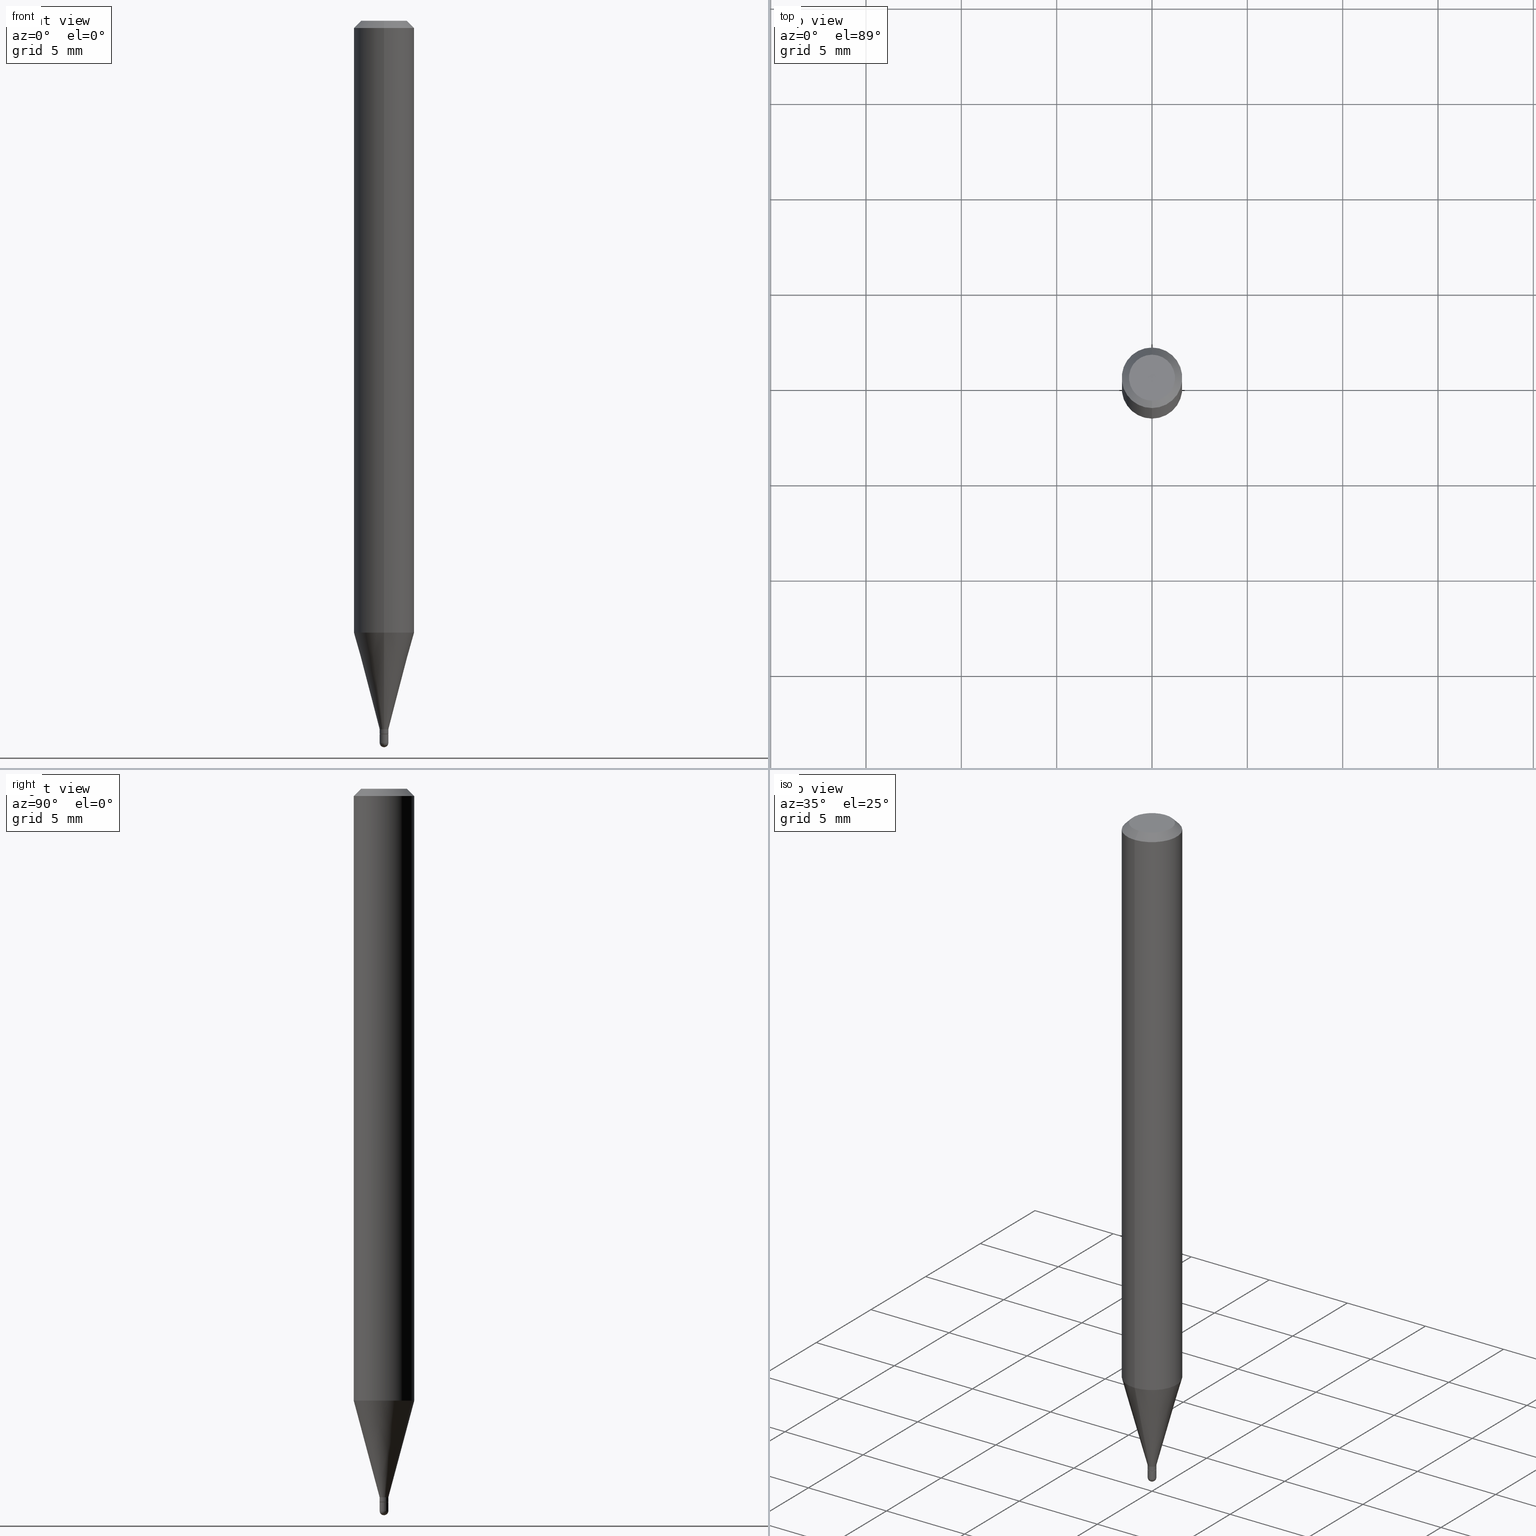
[diagram: canonical four-view strip — front | top / right | iso, engineering-drawing reading convention]
A machine part, canonical four-view strip (front | top / right | iso — engineering-drawing reading convention). The complete STEP part file that produces these views, byte-faithful:
ISO-10303-21;
HEADER;
FILE_DESCRIPTION (( 'STEP AP203' ),
    '1' );
FILE_NAME ('03042.STEP',
    '2024-03-08T18:02:53',
    ( '' ),
    ( '' ),
    'SwSTEP 2.0',
    'SolidWorks 2023',
    '' );
FILE_SCHEMA (( 'CONFIG_CONTROL_DESIGN' ));
ENDSEC;

DATA;
#1 = CARTESIAN_POINT ( 'NONE',  ( 3.646193990022038953E-29, -5.205798676215130324E-15, -1.491000000000000103 ) ) ;
#2 = EDGE_LOOP ( 'NONE', ( #447, #252, #242, #79 ) ) ;
#3 = ADVANCED_FACE ( 'NONE', ( #457 ), #400, .T. ) ;
#4 = CARTESIAN_POINT ( 'NONE',  ( 4.440892098500932831E-16, 0.06249999999999556605, -1.263335281795065823 ) ) ;
#5 = VERTEX_POINT ( 'NONE', #224 ) ;
#6 = DATE_TIME_ROLE ( 'classification_date' ) ;
#7 = AXIS2_PLACEMENT_3D ( 'NONE', #474, #87, #331 ) ;
#8 = EDGE_CURVE ( 'NONE', #368, #275, #66, .T. ) ;
#9 = EDGE_CURVE ( 'NONE', #479, #88, #298, .T. ) ;
#10 = DIRECTION ( 'NONE',  ( 2.438088387897960049E-29, -3.491481338843145188E-15, -1.000000000000000000 ) ) ;
#11 = EDGE_LOOP ( 'NONE', ( #49, #481, #485, #133 ) ) ;
#12 = DIRECTION ( 'NONE',  ( 5.024295867788190974E-15, 0.7071067811865681119, 0.7071067811865270336 ) ) ;
#13 = ORIENTED_EDGE ( 'NONE', *, *, #350, .T. ) ;
#14 = CARTESIAN_POINT ( 'NONE',  ( 6.394884621840845723E-17, 0.008999999999999922992, -3.142336876373948999E-17 ) ) ;
#15 = EDGE_LOOP ( 'NONE', ( #18, #202 ) ) ;
#16 = CIRCLE ( 'NONE', #128, 0.008999999999999922992 ) ;
#17 = CIRCLE ( 'NONE', #58, 0.008499999999999998876 ) ;
#18 = ORIENTED_EDGE ( 'NONE', *, *, #208, .F. ) ;
#19 = DIRECTION ( 'NONE',  ( -2.445465957590144447E-29, 3.491485418193306478E-15, 1.000000000000000000 ) ) ;
#20 = APPLICATION_CONTEXT ( 'configuration controlled 3d designs of mechanical parts and assemblies' ) ;
#21 = EDGE_CURVE ( 'NONE', #386, #207, #409, .T. ) ;
#22 = DIRECTION ( 'NONE',  ( -2.445465957590144447E-29, 3.491485418193306478E-15, 1.000000000000000000 ) ) ;
#23 = DIRECTION ( 'NONE',  ( -2.445468806185136597E-29, 3.491481338843145583E-15, 1.000000000000000000 ) ) ;
#24 = AXIS2_PLACEMENT_3D ( 'NONE', #303, #22, #141 ) ;
#25 = DIRECTION ( 'NONE',  ( 2.445465957590144447E-29, -3.491485418193306478E-15, -1.000000000000000000 ) ) ;
#26 = COORDINATED_UNIVERSAL_TIME_OFFSET ( 5, 0, .BEHIND. ) ;
#27 = ORIENTED_EDGE ( 'NONE', *, *, #316, .F. ) ;
#28 = PERSON_AND_ORGANIZATION_ROLE ( 'design_owner' ) ;
#29 = CARTESIAN_POINT ( 'NONE',  ( 6.394884621844426412E-17, 0.008999999999994753516, -1.472500000000000142 ) ) ;
#30 = ADVANCED_FACE ( 'NONE', ( #184 ), #172, .F. ) ;
#31 = DATE_AND_TIME ( #181, #347 ) ;
#32 = CONICAL_SURFACE ( 'NONE', #89, 0.008999999999999922992, 0.2617993877991502960 ) ;
#33 = DIRECTION ( 'NONE',  ( 1.000000000000000000, -6.982962677686225690E-15, 0.000000000000000000 ) ) ;
#34 = DIRECTION ( 'NONE',  ( -2.445468806185136597E-29, 3.491481338843145583E-15, 1.000000000000000000 ) ) ;
#35 = SPHERICAL_SURFACE ( 'NONE', #41, 0.008999999999999910849 ) ;
#36 = ORIENTED_EDGE ( 'NONE', *, *, #71, .T. ) ;
#37 = DIRECTION ( 'NONE',  ( 1.000000000000000000, -6.982962677686225690E-15, 0.000000000000000000 ) ) ;
#38 = EDGE_CURVE ( 'NONE', #5, #386, #337, .T. ) ;
#39 = EDGE_CURVE ( 'NONE', #96, #249, #228, .T. ) ;
#40 = CARTESIAN_POINT ( 'NONE',  ( 6.394884621844422714E-17, 0.008999999999994814232, -1.462999999999999856 ) ) ;
#41 = AXIS2_PLACEMENT_3D ( 'NONE', #428, #351, #226 ) ;
#42 = EDGE_LOOP ( 'NONE', ( #487, #327, #195, #288 ) ) ;
#43 = COORDINATED_UNIVERSAL_TIME_OFFSET ( 5, 0, .BEHIND. ) ;
#44 = CARTESIAN_POINT ( 'NONE',  ( 3.577716695954381229E-29, -5.108043166816806907E-15, -1.462999999999999856 ) ) ;
#45 = ORIENTED_EDGE ( 'NONE', *, *, #161, .T. ) ;
#46 = DIRECTION ( 'NONE',  ( -4.937700262164674260E-15, -0.7071067811865632269, 0.7071067811865319186 ) ) ;
#47 = ORIENTED_EDGE ( 'NONE', *, *, #441, .T. ) ;
#48 = CARTESIAN_POINT ( 'NONE',  ( 6.039613253964452424E-17, 0.008499999999994855421, -1.473000000000000087 ) ) ;
#49 = ORIENTED_EDGE ( 'NONE', *, *, #441, .F. ) ;
#50 = AXIS2_PLACEMENT_3D ( 'NONE', #495, #372, #259 ) ;
#51 = VECTOR ( 'NONE', #12, 39.37007874015748143 ) ;
#52 = LOCAL_TIME ( 13, 2, 53.00000000000000000, #43 ) ;
#53 = LINE ( 'NONE', #48, #51 ) ;
#54 = ORIENTED_EDGE ( 'NONE', *, *, #359, .T. ) ;
#55 = FACE_OUTER_BOUND ( 'NONE', #82, .T. ) ;
#56 = EDGE_LOOP ( 'NONE', ( #13, #279 ) ) ;
#57 = ORIENTED_EDGE ( 'NONE', *, *, #341, .T. ) ;
#58 = AXIS2_PLACEMENT_3D ( 'NONE', #382, #472, #434 ) ;
#59 = DIRECTION ( 'NONE',  ( -6.982962677686265922E-15, -1.000000000000000000, 0.000000000000000000 ) ) ;
#60 = CARTESIAN_POINT ( 'NONE',  ( 0.000000000000000000, 0.000000000000000000, 0.000000000000000000 ) ) ;
#61 = ADVANCED_FACE ( 'NONE', ( #336 ), #214, .T. ) ;
#62 = CYLINDRICAL_SURFACE ( 'NONE', #468, 0.008999999999999922992 ) ;
#63 = CYLINDRICAL_SURFACE ( 'NONE', #50, 0.008999999999999922992 ) ;
#64 = LINE ( 'NONE', #492, #373 ) ;
#65 = AXIS2_PLACEMENT_3D ( 'NONE', #439, #10, #163 ) ;
#66 = LINE ( 'NONE', #67, #414 ) ;
#67 = CARTESIAN_POINT ( 'NONE',  ( -6.284666409917585411E-17, -0.008999999999999922992, 3.142336876373948999E-17 ) ) ;
#68 = ADVANCED_FACE ( 'NONE', ( #328 ), #63, .T. ) ;
#69 = APPROVAL_DATE_TIME ( #422, #486 ) ;
#70 = FACE_OUTER_BOUND ( 'NONE', #11, .T. ) ;
#71 = EDGE_CURVE ( 'NONE', #386, #5, #276, .T. ) ;
#72 = PERSON_AND_ORGANIZATION ( #215, #315 ) ;
#73 = CIRCLE ( 'NONE', #229, 0.008999999999999922992 ) ;
#74 = DIRECTION ( 'NONE',  ( -2.445465957590144447E-29, 3.491485418193306478E-15, 1.000000000000000000 ) ) ;
#75 = DIRECTION ( 'NONE',  ( -2.445465957590144447E-29, 3.491485418193306478E-15, 1.000000000000000000 ) ) ;
#76 = EDGE_CURVE ( 'NONE', #164, #307, #267, .T. ) ;
#77 = DIRECTION ( 'NONE',  ( -2.445465957590144447E-29, 3.491485418193306478E-15, 1.000000000000000000 ) ) ;
#78 = LINE ( 'NONE', #114, #260 ) ;
#79 = ORIENTED_EDGE ( 'NONE', *, *, #8, .F. ) ;
#80 = CARTESIAN_POINT ( 'NONE',  ( 3.577716695954381229E-29, -5.108043166816806907E-15, -1.462999999999999856 ) ) ;
#81 = ADVANCED_FACE ( 'NONE', ( #329 ), #444, .T. ) ;
#82 = EDGE_LOOP ( 'NONE', ( #397, #124, #57, #246 ) ) ;
#83 = AXIS2_PLACEMENT_3D ( 'NONE', #189, #146, #304 ) ;
#84 = CARTESIAN_POINT ( 'NONE',  ( -6.284666409914007187E-17, -0.009000000000005030018, -1.462999999999999856 ) ) ;
#85 = CARTESIAN_POINT ( 'NONE',  ( -5.935518276029722497E-17, -0.008500000000005140596, -1.473000000000000087 ) ) ;
#86 = EDGE_LOOP ( 'NONE', ( #383, #255, #234, #168 ) ) ;
#87 = DIRECTION ( 'NONE',  ( -2.445468806185136597E-29, 3.491481338843145583E-15, 1.000000000000000000 ) ) ;
#88 = VERTEX_POINT ( 'NONE', #101 ) ;
#89 = AXIS2_PLACEMENT_3D ( 'NONE', #305, #77, #187 ) ;
#90 = APPROVAL ( #465, 'UNSPECIFIED' ) ;
#91 = CC_DESIGN_APPROVAL ( #486, ( #339 ) ) ;
#92 = CARTESIAN_POINT ( 'NONE',  ( 3.840629472727447874E-16, 0.04749999999999999362, 7.364327909283748346E-17 ) ) ;
#93 = ORIENTED_EDGE ( 'NONE', *, *, #71, .F. ) ;
#94 = FACE_OUTER_BOUND ( 'NONE', #505, .T. ) ;
#95 = EDGE_LOOP ( 'NONE', ( #358, #282 ) ) ;
#96 = VERTEX_POINT ( 'NONE', #216 ) ;
#97 = APPROVAL_PERSON_ORGANIZATION ( #183, #90, #297 ) ;
#98 = APPROVAL_PERSON_ORGANIZATION ( #399, #314, #313 ) ;
#99 = FACE_OUTER_BOUND ( 'NONE', #205, .T. ) ;
#100 = PRODUCT_DEFINITION_SHAPE ( 'NONE', 'NONE',  #369 ) ;
#101 = CARTESIAN_POINT ( 'NONE',  ( -4.364351673553912750E-16, -0.06250000000000005551, -0.01499999999999954321 ) ) ;
#102 =( NAMED_UNIT ( * ) PLANE_ANGLE_UNIT ( ) SI_UNIT ( $, .RADIAN. ) );
#103 = DIRECTION ( 'NONE',  ( -6.982962677686265922E-15, -1.000000000000000000, 3.491485418193306478E-15 ) ) ;
#104 =( LENGTH_UNIT ( ) NAMED_UNIT ( * ) SI_UNIT ( $, .METRE. ) );
#105 = CLOSED_SHELL ( 'NONE', ( #180, #243, #289, #134, #132 ) ) ;
#106 = CIRCLE ( 'NONE', #489, 0.06250000000000000000 ) ;
#107 = DIRECTION ( 'NONE',  ( -6.982962677686265922E-15, -1.000000000000000000, 0.000000000000000000 ) ) ;
#108 = PERSON_AND_ORGANIZATION_ROLE ( 'creator' ) ;
#109 = FACE_OUTER_BOUND ( 'NONE', #42, .T. ) ;
#110 = DIRECTION ( 'NONE',  ( -2.445465957590144447E-29, 3.491485418193306478E-15, 1.000000000000000000 ) ) ;
#111 = CLOSED_SHELL ( 'NONE', ( #456, #384, #308, #131, #3, #186, #61, #81, #256, #30, #455, #68 ) ) ;
#112 = CONICAL_SURFACE ( 'NONE', #287, 0.06250000000000000000, 0.7853981633974483900 ) ;
#113 = CARTESIAN_POINT ( 'NONE',  ( -6.284666409914007187E-17, -0.009000000000005030018, -1.462999999999999856 ) ) ;
#114 = CARTESIAN_POINT ( 'NONE',  ( -0.008999999999999999320, 6.394884621840901190E-17, -4.427041581229414594E-31 ) ) ;
#115 = CARTESIAN_POINT ( 'NONE',  ( 0.000000000000000000, 0.000000000000000000, 0.000000000000000000 ) ) ;
#116 = CC_DESIGN_PERSON_AND_ORGANIZATION_ASSIGNMENT ( #340, #225, ( #339 ) ) ;
#117 = EDGE_CURVE ( 'NONE', #479, #451, #253, .T. ) ;
#118 = CARTESIAN_POINT ( 'NONE',  ( -5.856617967785148099E-45, 8.361717803097652649E-31, 2.394888364570195200E-16 ) ) ;
#119 = CIRCLE ( 'NONE', #407, 0.008999999999999999320 ) ;
#120 = CC_DESIGN_APPROVAL ( #314, ( #269 ) ) ;
#121 = DIRECTION ( 'NONE',  ( -2.445465957590144447E-29, 3.491485418193306478E-15, 1.000000000000000000 ) ) ;
#122 = ORIENTED_EDGE ( 'NONE', *, *, #508, .F. ) ;
#123 = DIRECTION ( 'NONE',  ( -2.445465957590144447E-29, 3.491485418193306478E-15, 1.000000000000000000 ) ) ;
#124 = ORIENTED_EDGE ( 'NONE', *, *, #76, .T. ) ;
#125 = DIRECTION ( 'NONE',  ( -2.445468806185136597E-29, 3.491481338843145583E-15, 1.000000000000000000 ) ) ;
#126 = VERTEX_POINT ( 'NONE', #29 ) ;
#127 = AXIS2_PLACEMENT_3D ( 'NONE', #334, #135, #293 ) ;
#128 = AXIS2_PLACEMENT_3D ( 'NONE', #44, #74, #239 ) ;
#129 = CARTESIAN_POINT ( 'NONE',  ( 3.668198936385158183E-31, -5.237228127289876172E-17, -0.01499999999999976179 ) ) ;
#130 = ORIENTED_EDGE ( 'NONE', *, *, #475, .T. ) ;
#131 = ADVANCED_FACE ( 'NONE', ( #109 ), #493, .T. ) ;
#132 = ADVANCED_FACE ( 'NONE', ( #99 ), #411, .T. ) ;
#133 = ORIENTED_EDGE ( 'NONE', *, *, #166, .F. ) ;
#134 = ADVANCED_FACE ( 'NONE', ( #272 ), #35, .T. ) ;
#135 = DIRECTION ( 'NONE',  ( -2.445465957590144447E-29, 3.491485418193306478E-15, 1.000000000000000000 ) ) ;
#136 = AXIS2_PLACEMENT_3D ( 'NONE', #1, #470, #33 ) ;
#137 = DIRECTION ( 'NONE',  ( 7.105427357601001859E-15, 1.000000000000000000, 0.000000000000000000 ) ) ;
#138 = DIRECTION ( 'NONE',  ( 0.000000000000000000, 0.000000000000000000, 1.000000000000000000 ) ) ;
#139 = ORIENTED_EDGE ( 'NONE', *, *, #154, .T. ) ;
#140 = PERSON_AND_ORGANIZATION ( #215, #315 ) ;
#141 = DIRECTION ( 'NONE',  ( -6.982962677686265922E-15, -1.000000000000000000, 4.370956789862821150E-15 ) ) ;
#142 = AXIS2_PLACEMENT_3D ( 'NONE', #462, #182, #137 ) ;
#143 = CIRCLE ( 'NONE', #346, 0.008999999999999910849 ) ;
#144 = CARTESIAN_POINT ( 'NONE',  ( 3.577716695954381229E-29, -5.108043166816806907E-15, -1.462999999999999856 ) ) ;
#145 = SECURITY_CLASSIFICATION_LEVEL ( 'unclassified' ) ;
#146 = DIRECTION ( 'NONE',  ( 1.000000000000000000, -6.982962677686265922E-15, 4.883557194083112340E-29 ) ) ;
#147 = DIRECTION ( 'NONE',  ( -6.982962677686265922E-15, -1.000000000000000000, 0.000000000000000000 ) ) ;
#148 = VECTOR ( 'NONE', #296, 39.37007874015748143 ) ;
#149 = AXIS2_PLACEMENT_3D ( 'NONE', #221, #138, #223 ) ;
#150 = CARTESIAN_POINT ( 'NONE',  ( 3.600948622551487677E-29, -5.141212278289644007E-15, -1.472500000000000142 ) ) ;
#151 = ORIENTED_EDGE ( 'NONE', *, *, #448, .T. ) ;
#152 = DIRECTION ( 'NONE',  ( 1.000000000000000000, -6.982962677686266711E-15, 4.876176775795935232E-29 ) ) ;
#153 = EDGE_LOOP ( 'NONE', ( #151, #156, #450, #476, #139 ) ) ;
#154 = EDGE_CURVE ( 'NONE', #284, #249, #169, .T. ) ;
#155 = CARTESIAN_POINT ( 'NONE',  ( -0.008999999999999999320, -5.110426497947132608E-15, -1.473000000000000087 ) ) ;
#156 = ORIENTED_EDGE ( 'NONE', *, *, #170, .T. ) ;
#157 = CARTESIAN_POINT ( 'NONE',  ( 2.540190280342689277E-16, 0.008999999999994814232, -1.462999999999999856 ) ) ;
#158 = CIRCLE ( 'NONE', #445, 0.008999999999999922992 ) ;
#159 = EDGE_LOOP ( 'NONE', ( #349, #326, #291, #322 ) ) ;
#160 = FACE_OUTER_BOUND ( 'NONE', #56, .T. ) ;
#161 = EDGE_CURVE ( 'NONE', #406, #275, #16, .T. ) ;
#162 = ORIENTED_EDGE ( 'NONE', *, *, #39, .F. ) ;
#163 = DIRECTION ( 'NONE',  ( -1.000000000000000000, 6.982962677686265922E-15, -4.876176775795935793E-29 ) ) ;
#164 = VERTEX_POINT ( 'NONE', #310 ) ;
#165 = APPLICATION_CONTEXT ( 'configuration controlled 3d designs of mechanical parts and assemblies' ) ;
#166 = EDGE_CURVE ( 'NONE', #193, #284, #380, .T. ) ;
#167 = PLANE ( 'NONE',  #65 ) ;
#168 = ORIENTED_EDGE ( 'NONE', *, *, #199, .F. ) ;
#169 = CIRCLE ( 'NONE', #458, 0.008999999999999999320 ) ;
#170 = EDGE_CURVE ( 'NONE', #273, #171, #78, .T. ) ;
#171 = VERTEX_POINT ( 'NONE', #155 ) ;
#172 = PLANE ( 'NONE',  #365 ) ;
#173 = DIRECTION ( 'NONE',  ( -6.982962677686265922E-15, -1.000000000000000000, 4.370956789862821150E-15 ) ) ;
#174 = AXIS2_PLACEMENT_3D ( 'NONE', #300, #488, #173 ) ;
#175 = MANIFOLD_SOLID_BREP ( 'Body-Move/Copy2[1]', #105 ) ;
#176 = VECTOR ( 'NONE', #321, 39.37007874015748143 ) ;
#177 = FACE_OUTER_BOUND ( 'NONE', #86, .T. ) ;
#178 = LOCAL_TIME ( 13, 2, 53.00000000000000000, #26 ) ;
#179 = CARTESIAN_POINT ( 'NONE',  ( 3.602171355530283344E-29, -5.142958020998740322E-15, -1.473000000000000087 ) ) ;
#180 = ADVANCED_FACE ( 'NONE', ( #423 ), #430, .T. ) ;
#181 = CALENDAR_DATE ( 2024, 8, 3 ) ;
#182 = DIRECTION ( 'NONE',  ( 1.000000000000000000, -7.105427357601001070E-15, 4.926315508542082329E-29 ) ) ;
#183 = PERSON_AND_ORGANIZATION ( #215, #315 ) ;
#184 = FACE_OUTER_BOUND ( 'NONE', #15, .T. ) ;
#185 = CALENDAR_DATE ( 2024, 8, 3 ) ;
#186 = ADVANCED_FACE ( 'NONE', ( #266 ), #32, .T. ) ;
#187 = DIRECTION ( 'NONE',  ( -6.982962677686265922E-15, -1.000000000000000000, 0.000000000000000000 ) ) ;
#188 = DIRECTION ( 'NONE',  ( -6.982962677686265922E-15, -1.000000000000000000, 0.000000000000000000 ) ) ;
#189 = CARTESIAN_POINT ( 'NONE',  ( 3.645424340361776999E-29, -5.206900858334362902E-15, -1.491000000000000103 ) ) ;
#190 = CIRCLE ( 'NONE', #211, 0.04749999999999999362 ) ;
#191 = CARTESIAN_POINT ( 'NONE',  ( 3.600948622551487677E-29, -5.141212278289644007E-15, -1.472500000000000142 ) ) ;
#192 = CC_DESIGN_DATE_AND_TIME_ASSIGNMENT ( #427, #333, ( #369 ) ) ;
#193 = VERTEX_POINT ( 'NONE', #236 ) ;
#194 = DIRECTION ( 'NONE',  ( -2.445468806185136597E-29, 3.491481338843145583E-15, 1.000000000000000000 ) ) ;
#195 = ORIENTED_EDGE ( 'NONE', *, *, #421, .F. ) ;
#196 = CARTESIAN_POINT ( 'NONE',  ( 3.602171355530283344E-29, -5.142958020998740322E-15, -1.473000000000000087 ) ) ;
#197 = ORIENTED_EDGE ( 'NONE', *, *, #294, .F. ) ;
#198 = SHAPE_DEFINITION_REPRESENTATION ( #100, #398 ) ;
#199 = EDGE_CURVE ( 'NONE', #451, #207, #391, .T. ) ;
#200 = CARTESIAN_POINT ( 'NONE',  ( 3.645424340361776999E-29, -5.206900858334362902E-15, -1.491000000000000103 ) ) ;
#201 = AXIS2_PLACEMENT_3D ( 'NONE', #280, #23, #403 ) ;
#202 = ORIENTED_EDGE ( 'NONE', *, *, #76, .F. ) ;
#203 = CC_DESIGN_APPROVAL ( #90, ( #369 ) ) ;
#204 = CARTESIAN_POINT ( 'NONE',  ( 3.646193990022038953E-29, -5.205798676215130324E-15, -1.491000000000000103 ) ) ;
#205 = EDGE_LOOP ( 'NONE', ( #388, #392, #254, #210, #122 ) ) ;
#206 = CARTESIAN_POINT ( 'NONE',  ( 3.602171355530283344E-29, -5.142958020998740322E-15, -1.473000000000000087 ) ) ;
#207 = VERTEX_POINT ( 'NONE', #312 ) ;
#208 = EDGE_CURVE ( 'NONE', #307, #164, #17, .T. ) ;
#209 = VECTOR ( 'NONE', #222, 39.37007874015748143 ) ;
#210 = ORIENTED_EDGE ( 'NONE', *, *, #361, .T. ) ;
#211 = AXIS2_PLACEMENT_3D ( 'NONE', #118, #121, #241 ) ;
#212 = AXIS2_PLACEMENT_3D ( 'NONE', #206, #290, #449 ) ;
#213 = DESIGN_CONTEXT ( 'detailed design', #20, 'design' ) ;
#214 = CYLINDRICAL_SURFACE ( 'NONE', #127, 0.06250000000000000000 ) ;
#215 = PERSON ( 'UNSPECIFIED', 'UNSPECIFIED', 'UNSPECIFIED', ('UNSPECIFIED'), ('UNSPECIFIED'), ('UNSPECIFIED') ) ;
#216 = CARTESIAN_POINT ( 'NONE',  ( 3.667048734787312244E-29, -5.238875281443567044E-15, -1.499999999999999778 ) ) ;
#217 = CARTESIAN_POINT ( 'NONE',  ( 0.000000000000000000, 0.000000000000000000, 0.000000000000000000 ) ) ;
#218 = CARTESIAN_POINT ( 'NONE',  ( -4.287811248607203282E-16, -0.06250000000000005551, -0.01499999999999954321 ) ) ;
#219 = AXIS2_PLACEMENT_3D ( 'NONE', #257, #377, #332 ) ;
#220 = AXIS2_PLACEMENT_3D ( 'NONE', #80, #504, #147 ) ;
#221 = CARTESIAN_POINT ( 'NONE',  ( 0.000000000000000000, 0.000000000000000000, 0.000000000000000000 ) ) ;
#222 = DIRECTION ( 'NONE',  ( -2.445465957590144447E-29, 3.491485418193306478E-15, 1.000000000000000000 ) ) ;
#223 = DIRECTION ( 'NONE',  ( 1.000000000000000000, 0.000000000000000000, 0.000000000000000000 ) ) ;
#224 = CARTESIAN_POINT ( 'NONE',  ( -4.364351673553608052E-16, -0.06250000000000441314, -1.263335281795065157 ) ) ;
#225 = PERSON_AND_ORGANIZATION_ROLE ( 'creator' ) ;
#226 = DIRECTION ( 'NONE',  ( -6.982962677686265922E-15, -1.000000000000000000, 0.000000000000000000 ) ) ;
#227 = PRODUCT_RELATED_PRODUCT_CATEGORY ( 'detail', '', ( #410 ) ) ;
#228 = CIRCLE ( 'NONE', #142, 0.008999999999999910849 ) ;
#229 = AXIS2_PLACEMENT_3D ( 'NONE', #150, #306, #360 ) ;
#230 = DIMENSIONAL_EXPONENTS ( 1.000000000000000000, 0.000000000000000000, 0.000000000000000000, 0.000000000000000000, 0.000000000000000000, 0.000000000000000000, 0.000000000000000000 ) ;
#231 = CARTESIAN_POINT ( 'NONE',  ( 4.364351673553919652E-16, 0.06249999999999995143, -0.01499999999999997863 ) ) ;
#232 = EDGE_CURVE ( 'NONE', #406, #386, #501, .T. ) ;
#233 = DIRECTION ( 'NONE',  ( -2.445468806185136877E-29, 3.491481338843145188E-15, 1.000000000000000000 ) ) ;
#234 = ORIENTED_EDGE ( 'NONE', *, *, #421, .T. ) ;
#235 = CC_DESIGN_PERSON_AND_ORGANIZATION_ASSIGNMENT ( #140, #108, ( #369 ) ) ;
#236 = CARTESIAN_POINT ( 'NONE',  ( -6.284666409913961581E-17, -0.009000000000005161857, -1.491000000000000103 ) ) ;
#237 = CALENDAR_DATE ( 2024, 8, 3 ) ;
#238 = VECTOR ( 'NONE', #274, 39.37007874015748143 ) ;
#239 = DIRECTION ( 'NONE',  ( -6.982962677686265922E-15, -1.000000000000000000, 0.000000000000000000 ) ) ;
#240 = CARTESIAN_POINT ( 'NONE',  ( 0.008999999999999999320, -6.284666409917639645E-17, 4.388559098216341408E-31 ) ) ;
#241 = DIRECTION ( 'NONE',  ( -6.982962677686266711E-15, -1.000000000000000000, 3.491485418193306872E-15 ) ) ;
#242 = ORIENTED_EDGE ( 'NONE', *, *, #264, .F. ) ;
#243 = ADVANCED_FACE ( 'NONE', ( #70 ), #387, .T. ) ;
#244 = LINE ( 'NONE', #14, #509 ) ;
#245 = AXIS2_PLACEMENT_3D ( 'NONE', #496, #34, #37 ) ;
#246 = ORIENTED_EDGE ( 'NONE', *, *, #251, .F. ) ;
#247 = LOCAL_TIME ( 13, 2, 53.00000000000000000, #261 ) ;
#248 = LINE ( 'NONE', #85, #426 ) ;
#249 = VERTEX_POINT ( 'NONE', #464 ) ;
#250 = CARTESIAN_POINT ( 'NONE',  ( 0.008999999999999999320, -5.205798676215129535E-15, -1.473000000000000087 ) ) ;
#251 = EDGE_CURVE ( 'NONE', #126, #368, #158, .T. ) ;
#252 = ORIENTED_EDGE ( 'NONE', *, *, #294, .T. ) ;
#253 = CIRCLE ( 'NONE', #219, 0.04749999999999999362 ) ;
#254 = ORIENTED_EDGE ( 'NONE', *, *, #166, .T. ) ;
#255 = ORIENTED_EDGE ( 'NONE', *, *, #9, .T. ) ;
#256 = ADVANCED_FACE ( 'NONE', ( #344 ), #345, .F. ) ;
#257 = CARTESIAN_POINT ( 'NONE',  ( -5.856617967785148099E-45, 8.361717803097652649E-31, 2.394888364570195200E-16 ) ) ;
#258 =( NAMED_UNIT ( * ) SI_UNIT ( $, .STERADIAN. ) SOLID_ANGLE_UNIT ( ) );
#259 = DIRECTION ( 'NONE',  ( -6.982962677686265922E-15, -1.000000000000000000, 3.491485418193306478E-15 ) ) ;
#260 = VECTOR ( 'NONE', #233, 39.37007874015748143 ) ;
#261 = COORDINATED_UNIVERSAL_TIME_OFFSET ( 5, 0, .BEHIND. ) ;
#262 = CARTESIAN_POINT ( 'NONE',  ( 3.668198936385158183E-31, -5.237228127289876172E-17, -0.01499999999999976179 ) ) ;
#263 = APPROVAL_STATUS ( 'not_yet_approved' ) ;
#264 = EDGE_CURVE ( 'NONE', #275, #406, #452, .T. ) ;
#265 = DIRECTION ( 'NONE',  ( 1.000000000000000000, -6.982962677686225690E-15, 0.000000000000000000 ) ) ;
#266 = FACE_OUTER_BOUND ( 'NONE', #507, .T. ) ;
#267 = CIRCLE ( 'NONE', #435, 0.008499999999999998876 ) ;
#268 = CONICAL_SURFACE ( 'NONE', #390, 0.008499999999999998876, 0.7853981633974739252 ) ;
#269 = SECURITY_CLASSIFICATION ( '', '', #145 ) ;
#270 = CARTESIAN_POINT ( 'NONE',  ( 0.008999999999999999320, -5.237222008264718177E-15, -1.491000000000000103 ) ) ;
#271 = CC_DESIGN_PERSON_AND_ORGANIZATION_ASSIGNMENT ( #374, #28, ( #410 ) ) ;
#272 = FACE_OUTER_BOUND ( 'NONE', #352, .T. ) ;
#273 = VERTEX_POINT ( 'NONE', #466 ) ;
#274 = DIRECTION ( 'NONE',  ( 4.937700262164548042E-15, 0.7071067811865451302, -0.7071067811865499042 ) ) ;
#275 = VERTEX_POINT ( 'NONE', #113 ) ;
#276 = CIRCLE ( 'NONE', #174, 0.06250000000000000000 ) ;
#277 = CC_DESIGN_SECURITY_CLASSIFICATION ( #269, ( #339 ) ) ;
#278 = DIRECTION ( 'NONE',  ( -2.445468806185136877E-29, 3.491481338843145188E-15, 1.000000000000000000 ) ) ;
#279 = ORIENTED_EDGE ( 'NONE', *, *, #508, .T. ) ;
#280 = CARTESIAN_POINT ( 'NONE',  ( 3.602175551510706507E-29, -5.142952012115953829E-15, -1.473000000000000087 ) ) ;
#281 = CC_DESIGN_DATE_AND_TIME_ASSIGNMENT ( #395, #6, ( #269 ) ) ;
#282 = ORIENTED_EDGE ( 'NONE', *, *, #117, .T. ) ;
#283 = DIRECTION ( 'NONE',  ( 6.982962677686265922E-15, 1.000000000000000000, -3.483106191921935554E-15 ) ) ;
#284 = VERTEX_POINT ( 'NONE', #270 ) ;
#285 = EDGE_CURVE ( 'NONE', #368, #126, #73, .T. ) ;
#286 = DIRECTION ( 'NONE',  ( -6.982962677686265922E-15, -1.000000000000000000, 3.483106191921935554E-15 ) ) ;
#287 = AXIS2_PLACEMENT_3D ( 'NONE', #317, #319, #283 ) ;
#288 = ORIENTED_EDGE ( 'NONE', *, *, #475, .F. ) ;
#289 = ADVANCED_FACE ( 'NONE', ( #160 ), #167, .F. ) ;
#290 = DIRECTION ( 'NONE',  ( -2.445465957590144447E-29, 3.491485418193306478E-15, 1.000000000000000000 ) ) ;
#291 = ORIENTED_EDGE ( 'NONE', *, *, #199, .T. ) ;
#292 = ORIENTED_EDGE ( 'NONE', *, *, #251, .T. ) ;
#293 = DIRECTION ( 'NONE',  ( -6.982962677686265922E-15, -1.000000000000000000, 3.491485418193306083E-15 ) ) ;
#294 = EDGE_CURVE ( 'NONE', #126, #406, #244, .T. ) ;
#295 = VECTOR ( 'NONE', #420, 39.37007874015748143 ) ;
#296 = DIRECTION ( 'NONE',  ( -4.851104656540964275E-15, -0.7071067811865500152, -0.7071067811865450192 ) ) ;
#297 = APPROVAL_ROLE ( '' ) ;
#298 = LINE ( 'NONE', #218, #148 ) ;
#299 = APPROVAL_ROLE ( '' ) ;
#300 = CARTESIAN_POINT ( 'NONE',  ( 3.089443424652384785E-29, -4.410916714676602621E-15, -1.263335281795065601 ) ) ;
#301 = CIRCLE ( 'NONE', #7, 0.008999999999999999320 ) ;
#302 = APPROVAL_DATE_TIME ( #31, #90 ) ;
#303 = CARTESIAN_POINT ( 'NONE',  ( 3.089443424652384785E-29, -4.410916714676602621E-15, -1.263335281795065601 ) ) ;
#304 = DIRECTION ( 'NONE',  ( -6.982962677686265922E-15, -1.000000000000000000, 0.000000000000000000 ) ) ;
#305 = CARTESIAN_POINT ( 'NONE',  ( 3.577716695954381229E-29, -5.108043166816806907E-15, -1.462999999999999856 ) ) ;
#306 = DIRECTION ( 'NONE',  ( -2.445465957590144447E-29, 3.491485418193306478E-15, 1.000000000000000000 ) ) ;
#307 = VERTEX_POINT ( 'NONE', #363 ) ;
#308 = ADVANCED_FACE ( 'NONE', ( #177 ), #112, .T. ) ;
#309 = CALENDAR_DATE ( 2024, 8, 3 ) ;
#310 = CARTESIAN_POINT ( 'NONE',  ( 6.217248937904449279E-17, 0.008499999999994855421, -1.473000000000000087 ) ) ;
#311 = ORIENTED_EDGE ( 'NONE', *, *, #21, .F. ) ;
#312 = CARTESIAN_POINT ( 'NONE',  ( 4.440892098500935790E-16, 0.06249999999999993755, -0.01499999999999997863 ) ) ;
#313 = APPROVAL_ROLE ( '' ) ;
#314 = APPROVAL ( #432, 'UNSPECIFIED' ) ;
#315 = ORGANIZATION ( 'UNSPECIFIED', 'UNSPECIFIED', '' ) ;
#316 = EDGE_CURVE ( 'NONE', #273, #193, #301, .T. ) ;
#317 = CARTESIAN_POINT ( 'NONE',  ( 3.668198936385158183E-31, -5.237228127289876172E-17, -0.01499999999999976179 ) ) ;
#318 = ORIENTED_EDGE ( 'NONE', *, *, #341, .F. ) ;
#319 = DIRECTION ( 'NONE',  ( 2.445465957590144447E-29, -3.491485418193306478E-15, -1.000000000000000000 ) ) ;
#320 = ORIENTED_EDGE ( 'NONE', *, *, #38, .F. ) ;
#321 = DIRECTION ( 'NONE',  ( -1.807323732225330928E-15, -0.2588190451025182970, 0.9659258262890689783 ) ) ;
#322 = ORIENTED_EDGE ( 'NONE', *, *, #375, .T. ) ;
#323 = UNCERTAINTY_MEASURE_WITH_UNIT (LENGTH_MEASURE( 1.000000000000000082E-05 ), #463, 'distance_accuracy_value', 'NONE');
#324 = LINE ( 'NONE', #84, #176 ) ;
#325 = AXIS2_PLACEMENT_3D ( 'NONE', #60, #412, #152 ) ;
#326 = ORIENTED_EDGE ( 'NONE', *, *, #353, .F. ) ;
#327 = ORIENTED_EDGE ( 'NONE', *, *, #21, .T. ) ;
#328 = FACE_OUTER_BOUND ( 'NONE', #443, .T. ) ;
#329 = FACE_OUTER_BOUND ( 'NONE', #159, .T. ) ;
#330 = LOCAL_TIME ( 13, 2, 53.00000000000000000, #393 ) ;
#331 = DIRECTION ( 'NONE',  ( 1.000000000000000000, -6.982962677686225690E-15, 0.000000000000000000 ) ) ;
#332 = DIRECTION ( 'NONE',  ( -6.982962677686266711E-15, -1.000000000000000000, 3.491485418193306872E-15 ) ) ;
#333 = DATE_TIME_ROLE ( 'creation_date' ) ;
#334 = CARTESIAN_POINT ( 'NONE',  ( 0.000000000000000000, 0.000000000000000000, 0.000000000000000000 ) ) ;
#335 = MECHANICAL_CONTEXT ( 'NONE', #165, 'mechanical' ) ;
#336 = FACE_OUTER_BOUND ( 'NONE', #404, .T. ) ;
#337 = CIRCLE ( 'NONE', #24, 0.06250000000000000000 ) ;
#338 = VECTOR ( 'NONE', #278, 39.37007874015748143 ) ;
#339 = PRODUCT_DEFINITION_FORMATION_WITH_SPECIFIED_SOURCE ( 'ANY', '', #410, .NOT_KNOWN. ) ;
#340 = PERSON_AND_ORGANIZATION ( #215, #315 ) ;
#341 = EDGE_CURVE ( 'NONE', #307, #368, #248, .T. ) ;
#342 = CARTESIAN_POINT ( 'NONE',  ( 3.646193990022038953E-29, -5.205798676215130324E-15, -1.491000000000000103 ) ) ;
#343 = LENGTH_MEASURE_WITH_UNIT ( LENGTH_MEASURE( 0.02539999999999999897 ), #104 );
#344 = FACE_OUTER_BOUND ( 'NONE', #95, .T. ) ;
#345 = PLANE ( 'NONE',  #437 ) ;
#346 = AXIS2_PLACEMENT_3D ( 'NONE', #200, #478, #357 ) ;
#347 = LOCAL_TIME ( 13, 2, 53.00000000000000000, #461 ) ;
#348 = CARTESIAN_POINT ( 'NONE',  ( 3.316907271900976096E-16, 0.04749999999999999362, -4.610113913567225187E-17 ) ) ;
#349 = ORIENTED_EDGE ( 'NONE', *, *, #9, .F. ) ;
#350 = EDGE_CURVE ( 'NONE', #429, #171, #356, .T. ) ;
#351 = DIRECTION ( 'NONE',  ( 1.000000000000000000, -6.982962677686265922E-15, 4.883557194083112340E-29 ) ) ;
#352 = EDGE_LOOP ( 'NONE', ( #162, #47, #27, #467 ) ) ;
#353 = EDGE_CURVE ( 'NONE', #451, #479, #190, .T. ) ;
#354 = DIRECTION ( 'NONE',  ( -6.982962677686265922E-15, -1.000000000000000000, 0.000000000000000000 ) ) ;
#355 = ORIENTED_EDGE ( 'NONE', *, *, #433, .T. ) ;
#356 = CIRCLE ( 'NONE', #201, 0.008999999999999999320 ) ;
#357 = DIRECTION ( 'NONE',  ( -6.982962677686266711E-15, -1.000000000000000000, 0.000000000000000000 ) ) ;
#358 = ORIENTED_EDGE ( 'NONE', *, *, #353, .T. ) ;
#359 = EDGE_CURVE ( 'NONE', #275, #5, #324, .T. ) ;
#360 = DIRECTION ( 'NONE',  ( -6.982962677686265922E-15, -1.000000000000000000, 0.000000000000000000 ) ) ;
#361 = EDGE_CURVE ( 'NONE', #284, #429, #484, .T. ) ;
#362 = ORIENTED_EDGE ( 'NONE', *, *, #359, .F. ) ;
#363 = CARTESIAN_POINT ( 'NONE',  ( -5.935518276029722497E-17, -0.008500000000005140596, -1.473000000000000087 ) ) ;
#364 = ORIENTED_EDGE ( 'NONE', *, *, #264, .T. ) ;
#365 = AXIS2_PLACEMENT_3D ( 'NONE', #491, #376, #103 ) ;
#366 = AXIS2_PLACEMENT_3D ( 'NONE', #396, #123, #286 ) ;
#367 = ORIENTED_EDGE ( 'NONE', *, *, #285, .F. ) ;
#368 = VERTEX_POINT ( 'NONE', #442 ) ;
#369 = PRODUCT_DEFINITION ( 'UNKNOWN', '', #339, #213 ) ;
#370 = CARTESIAN_POINT ( 'NONE',  ( 0.000000000000000000, 0.000000000000000000, 0.000000000000000000 ) ) ;
#371 = DIRECTION ( 'NONE',  ( -2.445465957590144447E-29, 3.491485418193306478E-15, 1.000000000000000000 ) ) ;
#372 = DIRECTION ( 'NONE',  ( -2.445465957590144447E-29, 3.491485418193306478E-15, 1.000000000000000000 ) ) ;
#373 = VECTOR ( 'NONE', #75, 39.37007874015748143 ) ;
#374 = PERSON_AND_ORGANIZATION ( #215, #315 ) ;
#375 = EDGE_CURVE ( 'NONE', #207, #88, #106, .T. ) ;
#376 = DIRECTION ( 'NONE',  ( -2.445465957590143886E-29, 3.491485418193306478E-15, 1.000000000000000000 ) ) ;
#377 = DIRECTION ( 'NONE',  ( -2.445465957590144447E-29, 3.491485418193306478E-15, 1.000000000000000000 ) ) ;
#378 = PERSON_AND_ORGANIZATION_ROLE ( 'design_supplier' ) ;
#379 = DIRECTION ( 'NONE',  ( 1.000000000000000000, -6.982962677686266711E-15, 4.876176775795935232E-29 ) ) ;
#380 = CIRCLE ( 'NONE', #136, 0.008999999999999999320 ) ;
#381 = APPLICATION_PROTOCOL_DEFINITION ( 'international standard', 'config_control_design', 1994, #165 ) ;
#382 = CARTESIAN_POINT ( 'NONE',  ( 3.602171355530283344E-29, -5.142958020998740322E-15, -1.473000000000000087 ) ) ;
#383 = ORIENTED_EDGE ( 'NONE', *, *, #117, .F. ) ;
#384 = ADVANCED_FACE ( 'NONE', ( #94 ), #268, .T. ) ;
#385 = DIRECTION ( 'NONE',  ( 6.982962677686265922E-15, 1.000000000000000000, -3.491485418193306478E-15 ) ) ;
#386 = VERTEX_POINT ( 'NONE', #4 ) ;
#387 = SPHERICAL_SURFACE ( 'NONE', #83, 0.008999999999999910849 ) ;
#388 = ORIENTED_EDGE ( 'NONE', *, *, #170, .F. ) ;
#389 = PERSON_AND_ORGANIZATION_ROLE ( 'classification_officer' ) ;
#390 = AXIS2_PLACEMENT_3D ( 'NONE', #196, #480, #354 ) ;
#391 = LINE ( 'NONE', #231, #238 ) ;
#392 = ORIENTED_EDGE ( 'NONE', *, *, #316, .T. ) ;
#393 = COORDINATED_UNIVERSAL_TIME_OFFSET ( 5, 0, .BEHIND. ) ;
#394 = DIRECTION ( 'NONE',  ( -2.445465957590144447E-29, 3.491485418193306478E-15, 1.000000000000000000 ) ) ;
#395 = DATE_AND_TIME ( #309, #52 ) ;
#396 = CARTESIAN_POINT ( 'NONE',  ( 3.668198936385158183E-31, -5.237228127289876172E-17, -0.01499999999999976179 ) ) ;
#397 = ORIENTED_EDGE ( 'NONE', *, *, #433, .F. ) ;
#398 = ADVANCED_BREP_SHAPE_REPRESENTATION ( '03042', ( #175, #510, #149 ), #483 ) ;
#399 = PERSON_AND_ORGANIZATION ( #215, #315 ) ;
#400 = CONICAL_SURFACE ( 'NONE', #424, 0.008999999999999922992, 0.2617993877991502960 ) ;
#401 = DIRECTION ( 'NONE',  ( -6.982962677686265922E-15, -1.000000000000000000, 3.483106191921935554E-15 ) ) ;
#402 = ORIENTED_EDGE ( 'NONE', *, *, #232, .T. ) ;
#403 = DIRECTION ( 'NONE',  ( 1.000000000000000000, -6.982962677686225690E-15, 0.000000000000000000 ) ) ;
#404 = EDGE_LOOP ( 'NONE', ( #311, #36, #130, #440 ) ) ;
#405 = FACE_OUTER_BOUND ( 'NONE', #2, .T. ) ;
#406 = VERTEX_POINT ( 'NONE', #157 ) ;
#407 = AXIS2_PLACEMENT_3D ( 'NONE', #204, #125, #446 ) ;
#408 = CC_DESIGN_PERSON_AND_ORGANIZATION_ASSIGNMENT ( #72, #389, ( #269 ) ) ;
#409 = LINE ( 'NONE', #454, #209 ) ;
#410 = PRODUCT ( '03042', '03042', '', ( #335 ) ) ;
#411 = CYLINDRICAL_SURFACE ( 'NONE', #325, 0.008999999999999999320 ) ;
#412 = DIRECTION ( 'NONE',  ( -2.445468806185136597E-29, 3.491481338843145583E-15, 1.000000000000000000 ) ) ;
#413 = DIRECTION ( 'NONE',  ( -6.982962677686265922E-15, -1.000000000000000000, 3.491485418193306478E-15 ) ) ;
#414 = VECTOR ( 'NONE', #19, 39.37007874015748143 ) ;
#415 = DIRECTION ( 'NONE',  ( -2.445465957590144447E-29, 3.491485418193306478E-15, 1.000000000000000000 ) ) ;
#416 = CONICAL_SURFACE ( 'NONE', #212, 0.008499999999999998876, 0.7853981633974739252 ) ;
#417 = CARTESIAN_POINT ( 'NONE',  ( -3.773273898774340269E-16, -0.04749999999999999362, 4.053343938212016181E-16 ) ) ;
#418 = DIRECTION ( 'NONE',  ( 6.982962677686265922E-15, 1.000000000000000000, -3.483106191921935554E-15 ) ) ;
#419 = CALENDAR_DATE ( 2024, 8, 3 ) ;
#420 = DIRECTION ( 'NONE',  ( 1.839019923739601104E-15, 0.2588190451025250693, 0.9659258262890670910 ) ) ;
#421 = EDGE_CURVE ( 'NONE', #88, #207, #497, .T. ) ;
#422 = DATE_AND_TIME ( #419, #247 ) ;
#423 = FACE_OUTER_BOUND ( 'NONE', #153, .T. ) ;
#424 = AXIS2_PLACEMENT_3D ( 'NONE', #144, #415, #59 ) ;
#425 = ORIENTED_EDGE ( 'NONE', *, *, #208, .T. ) ;
#426 = VECTOR ( 'NONE', #46, 39.37007874015748143 ) ;
#427 = DATE_AND_TIME ( #185, #178 ) ;
#428 = CARTESIAN_POINT ( 'NONE',  ( 3.645424340361776999E-29, -5.206900858334362902E-15, -1.491000000000000103 ) ) ;
#429 = VERTEX_POINT ( 'NONE', #250 ) ;
#430 = CYLINDRICAL_SURFACE ( 'NONE', #460, 0.008999999999999999320 ) ;
#431 = ORIENTED_EDGE ( 'NONE', *, *, #232, .F. ) ;
#432 = APPROVAL_STATUS ( 'not_yet_approved' ) ;
#433 = EDGE_CURVE ( 'NONE', #164, #126, #53, .T. ) ;
#434 = DIRECTION ( 'NONE',  ( -6.982962677686265922E-15, -1.000000000000000000, 0.000000000000000000 ) ) ;
#435 = AXIS2_PLACEMENT_3D ( 'NONE', #179, #459, #107 ) ;
#436 = CIRCLE ( 'NONE', #245, 0.008999999999999999320 ) ;
#437 = AXIS2_PLACEMENT_3D ( 'NONE', #348, #506, #385 ) ;
#438 = DIRECTION ( 'NONE',  ( -2.445465957590144447E-29, 3.491485418193306478E-15, 1.000000000000000000 ) ) ;
#439 = CARTESIAN_POINT ( 'NONE',  ( 6.284666409921241288E-17, 0.008999999999994855865, -1.473000000000000087 ) ) ;
#440 = ORIENTED_EDGE ( 'NONE', *, *, #375, .F. ) ;
#441 = EDGE_CURVE ( 'NONE', #96, #193, #143, .T. ) ;
#442 = CARTESIAN_POINT ( 'NONE',  ( -6.284666409914005955E-17, -0.009000000000005094203, -1.472500000000000142 ) ) ;
#443 = EDGE_LOOP ( 'NONE', ( #197, #292, #471, #511 ) ) ;
#444 = CONICAL_SURFACE ( 'NONE', #473, 0.06250000000000000000, 0.7853981633974483900 ) ;
#445 = AXIS2_PLACEMENT_3D ( 'NONE', #191, #110, #188 ) ;
#446 = DIRECTION ( 'NONE',  ( 1.000000000000000000, -6.982962677686225690E-15, 0.000000000000000000 ) ) ;
#447 = ORIENTED_EDGE ( 'NONE', *, *, #285, .T. ) ;
#448 = EDGE_CURVE ( 'NONE', #249, #273, #119, .T. ) ;
#449 = DIRECTION ( 'NONE',  ( -6.982962677686265922E-15, -1.000000000000000000, 0.000000000000000000 ) ) ;
#450 = ORIENTED_EDGE ( 'NONE', *, *, #350, .F. ) ;
#451 = VERTEX_POINT ( 'NONE', #92 ) ;
#452 = CIRCLE ( 'NONE', #220, 0.008999999999999922992 ) ;
#453 = DIRECTION ( 'NONE',  ( -2.445465957590144447E-29, 3.491485418193306478E-15, 1.000000000000000000 ) ) ;
#454 = CARTESIAN_POINT ( 'NONE',  ( 4.440892098500625669E-16, 0.06250000000000000000, -2.182178386370816302E-16 ) ) ;
#455 = ADVANCED_FACE ( 'NONE', ( #55 ), #416, .T. ) ;
#456 = ADVANCED_FACE ( 'NONE', ( #405 ), #62, .T. ) ;
#457 = FACE_OUTER_BOUND ( 'NONE', #502, .T. ) ;
#458 = AXIS2_PLACEMENT_3D ( 'NONE', #342, #469, #265 ) ;
#459 = DIRECTION ( 'NONE',  ( -2.445465957590144447E-29, 3.491485418193306478E-15, 1.000000000000000000 ) ) ;
#460 = AXIS2_PLACEMENT_3D ( 'NONE', #115, #194, #379 ) ;
#461 = COORDINATED_UNIVERSAL_TIME_OFFSET ( 5, 0, .BEHIND. ) ;
#462 = CARTESIAN_POINT ( 'NONE',  ( 3.645424340361776999E-29, -5.206900858334362902E-15, -1.491000000000000103 ) ) ;
#463 =( CONVERSION_BASED_UNIT ( 'INCH', #343 ) LENGTH_UNIT ( ) NAMED_UNIT ( #230 ) );
#464 = CARTESIAN_POINT ( 'NONE',  ( 6.394884621844515159E-17, 0.008999999999994748312, -1.491000000000000103 ) ) ;
#465 = APPROVAL_STATUS ( 'not_yet_approved' ) ;
#466 = CARTESIAN_POINT ( 'NONE',  ( -0.008999999999999999320, -5.110426497947132608E-15, -1.491000000000000103 ) ) ;
#467 = ORIENTED_EDGE ( 'NONE', *, *, #448, .F. ) ;
#468 = AXIS2_PLACEMENT_3D ( 'NONE', #217, #371, #413 ) ;
#469 = DIRECTION ( 'NONE',  ( -2.445468806185136597E-29, 3.491481338843145583E-15, 1.000000000000000000 ) ) ;
#470 = DIRECTION ( 'NONE',  ( -2.445468806185136597E-29, 3.491481338843145583E-15, 1.000000000000000000 ) ) ;
#471 = ORIENTED_EDGE ( 'NONE', *, *, #8, .T. ) ;
#472 = DIRECTION ( 'NONE',  ( -2.445465957590144447E-29, 3.491485418193306478E-15, 1.000000000000000000 ) ) ;
#473 = AXIS2_PLACEMENT_3D ( 'NONE', #262, #25, #418 ) ;
#474 = CARTESIAN_POINT ( 'NONE',  ( 3.646193990022038953E-29, -5.205798676215130324E-15, -1.491000000000000103 ) ) ;
#475 = EDGE_CURVE ( 'NONE', #5, #88, #64, .T. ) ;
#476 = ORIENTED_EDGE ( 'NONE', *, *, #361, .F. ) ;
#477 = APPROVAL_DATE_TIME ( #512, #314 ) ;
#478 = DIRECTION ( 'NONE',  ( -1.000000000000000000, 6.982962677686265922E-15, -4.883557194083112340E-29 ) ) ;
#479 = VERTEX_POINT ( 'NONE', #417 ) ;
#480 = DIRECTION ( 'NONE',  ( -2.445465957590144447E-29, 3.491485418193306478E-15, 1.000000000000000000 ) ) ;
#481 = ORIENTED_EDGE ( 'NONE', *, *, #39, .T. ) ;
#482 = AXIS2_PLACEMENT_3D ( 'NONE', #370, #453, #498 ) ;
#483 =( GEOMETRIC_REPRESENTATION_CONTEXT ( 3 ) GLOBAL_UNCERTAINTY_ASSIGNED_CONTEXT ( ( #323 ) ) GLOBAL_UNIT_ASSIGNED_CONTEXT ( ( #463, #102, #258 ) ) REPRESENTATION_CONTEXT ( 'NONE', 'WORKASPACE' ) );
#484 = LINE ( 'NONE', #240, #338 ) ;
#485 = ORIENTED_EDGE ( 'NONE', *, *, #154, .F. ) ;
#486 = APPROVAL ( #263, 'UNSPECIFIED' ) ;
#487 = ORIENTED_EDGE ( 'NONE', *, *, #38, .T. ) ;
#488 = DIRECTION ( 'NONE',  ( -2.445465957590144447E-29, 3.491485418193306478E-15, 1.000000000000000000 ) ) ;
#489 = AXIS2_PLACEMENT_3D ( 'NONE', #129, #438, #401 ) ;
#490 = APPROVAL_PERSON_ORGANIZATION ( #494, #486, #299 ) ;
#491 = CARTESIAN_POINT ( 'NONE',  ( 3.602171355530283344E-29, -5.142958020998740322E-15, -1.473000000000000087 ) ) ;
#492 = CARTESIAN_POINT ( 'NONE',  ( -4.364351673553916201E-16, -0.06250000000000000000, 2.182178386370816302E-16 ) ) ;
#493 = CYLINDRICAL_SURFACE ( 'NONE', #482, 0.06250000000000000000 ) ;
#494 = PERSON_AND_ORGANIZATION ( #215, #315 ) ;
#495 = CARTESIAN_POINT ( 'NONE',  ( 0.000000000000000000, 0.000000000000000000, 0.000000000000000000 ) ) ;
#496 = CARTESIAN_POINT ( 'NONE',  ( 3.602175551510706507E-29, -5.142952012115953829E-15, -1.473000000000000087 ) ) ;
#497 = CIRCLE ( 'NONE', #366, 0.06250000000000000000 ) ;
#498 = DIRECTION ( 'NONE',  ( -6.982962677686265922E-15, -1.000000000000000000, 3.491485418193306083E-15 ) ) ;
#499 = PERSON_AND_ORGANIZATION ( #215, #315 ) ;
#500 = CC_DESIGN_PERSON_AND_ORGANIZATION_ASSIGNMENT ( #499, #378, ( #339 ) ) ;
#501 = LINE ( 'NONE', #40, #295 ) ;
#502 = EDGE_LOOP ( 'NONE', ( #364, #402, #320, #362 ) ) ;
#503 = APPLICATION_PROTOCOL_DEFINITION ( 'international standard', 'config_control_design', 1994, #20 ) ;
#504 = DIRECTION ( 'NONE',  ( -2.445465957590144447E-29, 3.491485418193306478E-15, 1.000000000000000000 ) ) ;
#505 = EDGE_LOOP ( 'NONE', ( #425, #355, #367, #318 ) ) ;
#506 = DIRECTION ( 'NONE',  ( 2.445465957590143886E-29, -3.491485418193306478E-15, -1.000000000000000000 ) ) ;
#507 = EDGE_LOOP ( 'NONE', ( #431, #45, #54, #93 ) ) ;
#508 = EDGE_CURVE ( 'NONE', #171, #429, #436, .T. ) ;
#509 = VECTOR ( 'NONE', #394, 39.37007874015748143 ) ;
#510 = MANIFOLD_SOLID_BREP ( 'Body-Move/Copy2[2]', #111 ) ;
#511 = ORIENTED_EDGE ( 'NONE', *, *, #161, .F. ) ;
#512 = DATE_AND_TIME ( #237, #330 ) ;
ENDSEC;
END-ISO-10303-21;
